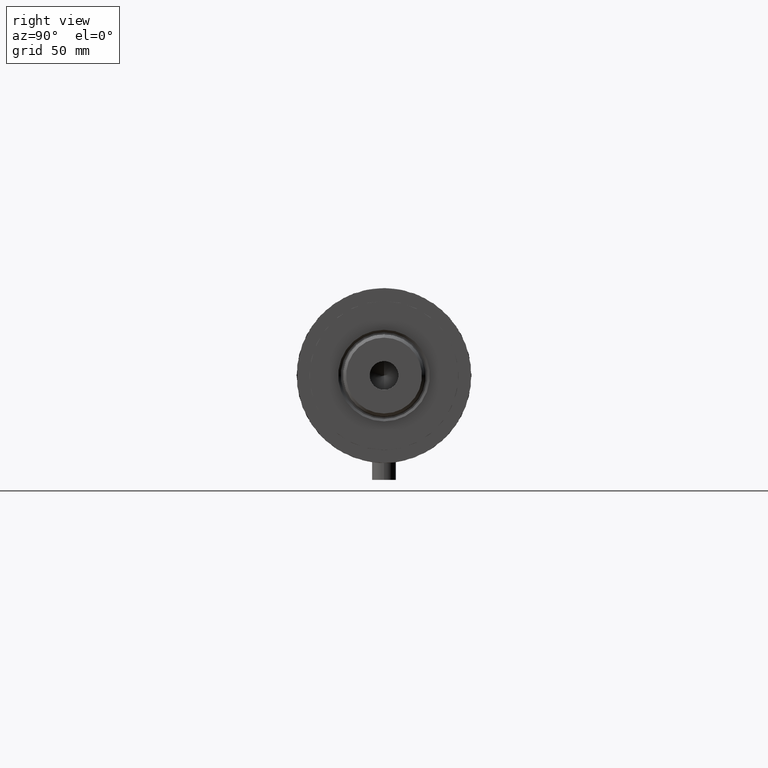
[diagram: clean part render]
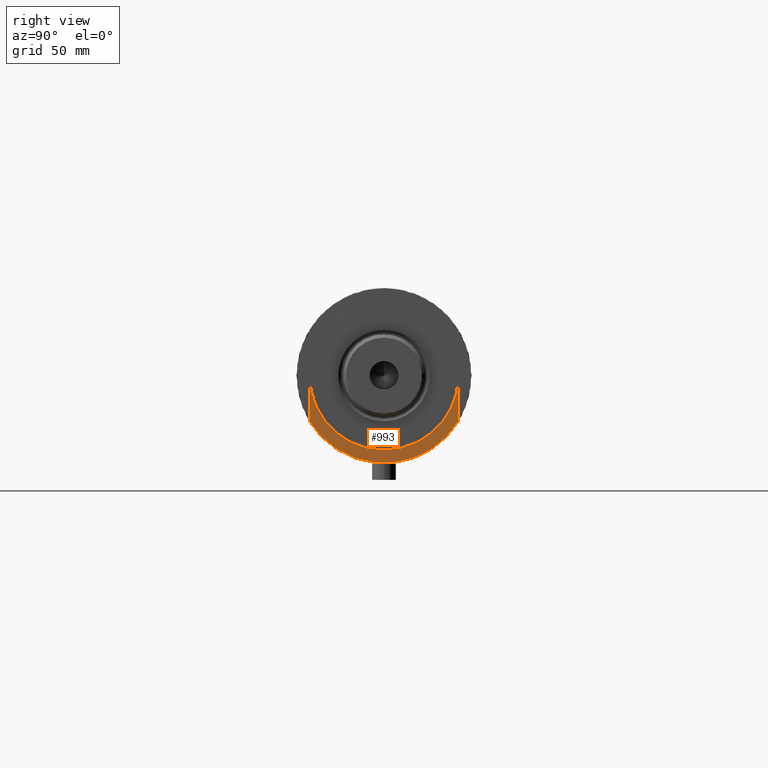
[diagram: same view with one face highlighted and labeled with its STEP entity id]
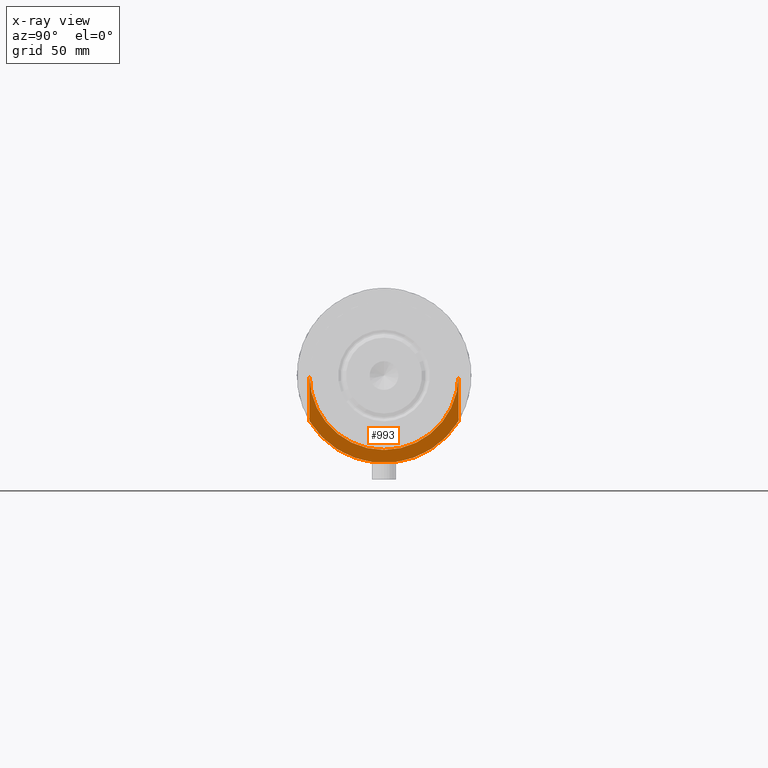
[diagram: x-ray of the same camera — body ghosted, the highlighted face saturated]
A machine part, right view. The second image highlights one B-rep face of the part: STEP entity #993.
The next image is the same camera in x-ray: the body ghosted, the highlighted face saturated — about 0% of this face is hidden behind the body in this view.
In plain terms, the highlighted planar face has unit normal (1, 0, -0).
Its self-contained STEP definition (entity closure, byte-faithful):
#283 = VECTOR ( 'NONE', #1143, 1000.000000000000000 ) ;
#290 = CARTESIAN_POINT ( 'NONE',  ( 23.01629857296780557, 37.50000000000000000, 27.89999999999999858 ) ) ;
#390 = CARTESIAN_POINT ( 'NONE',  ( 0.000000000000000000, 0.000000000000000000, 27.89999999999999858 ) ) ;
#408 = ORIENTED_EDGE ( 'NONE', *, *, #1883, .T. ) ;
#416 = ORIENTED_EDGE ( 'NONE', *, *, #2921, .F. ) ;
#499 = VERTEX_POINT ( 'NONE', #2518 ) ;
#691 = CARTESIAN_POINT ( 'NONE',  ( 0.000000000000000000, 0.000000000000000000, 27.89999999999999858 ) ) ;
#780 = ORIENTED_EDGE ( 'NONE', *, *, #4447, .T. ) ;
#783 = CARTESIAN_POINT ( 'NONE',  ( 0.000000000000000000, 0.000000000000000000, 27.89999999999999858 ) ) ;
#784 = DIRECTION ( 'NONE',  ( 0.000000000000000000, 0.000000000000000000, 1.000000000000000000 ) ) ;
#828 = DIRECTION ( 'NONE',  ( 1.000000000000000000, 0.000000000000000000, -0.000000000000000000 ) ) ;
#993 = ADVANCED_FACE ( 'NONE', ( #4005 ), #3562, .T. ) ;
#1070 = DIRECTION ( 'NONE',  ( 0.000000000000000000, 0.000000000000000000, 1.000000000000000000 ) ) ;
#1143 = DIRECTION ( 'NONE',  ( 1.000000000000000000, 0.000000000000000000, 0.000000000000000000 ) ) ;
#1308 = LINE ( 'NONE', #1583, #1406 ) ;
#1406 = VECTOR ( 'NONE', #2674, 1000.000000000000000 ) ;
#1583 = CARTESIAN_POINT ( 'NONE',  ( -23.01629857296780557, -37.50000000000000000, 27.89999999999999858 ) ) ;
#1745 = VERTEX_POINT ( 'NONE', #290 ) ;
#1817 = DIRECTION ( 'NONE',  ( 1.000000000000000000, 0.000000000000000000, 0.000000000000000000 ) ) ;
#1883 = EDGE_CURVE ( 'NONE', #3821, #1745, #2964, .T. ) ;
#1890 = CARTESIAN_POINT ( 'NONE',  ( 0.000000000000000000, 37.50000000000000000, 27.89999999999999858 ) ) ;
#1897 = DIRECTION ( 'NONE',  ( 1.000000000000000000, 0.000000000000000000, 0.000000000000000000 ) ) ;
#2060 = CARTESIAN_POINT ( 'NONE',  ( 23.01629857296780557, -37.50000000000000000, 27.89999999999999858 ) ) ;
#2102 = EDGE_CURVE ( 'NONE', #499, #3321, #2749, .T. ) ;
#2107 = DIRECTION ( 'NONE',  ( 1.000000000000000000, 0.000000000000000000, 0.000000000000000000 ) ) ;
#2139 = AXIS2_PLACEMENT_3D ( 'NONE', #3180, #1070, #1817 ) ;
#2202 = DIRECTION ( 'NONE',  ( -0.000000000000000000, -0.000000000000000000, -1.000000000000000000 ) ) ;
#2310 = EDGE_LOOP ( 'NONE', ( #3752, #780, #4058, #416, #408 ) ) ;
#2518 = CARTESIAN_POINT ( 'NONE',  ( 37.50000000000000000, 0.000000000000000000, 27.89999999999999858 ) ) ;
#2522 = AXIS2_PLACEMENT_3D ( 'NONE', #390, #784, #828 ) ;
#2674 = DIRECTION ( 'NONE',  ( -1.000000000000000000, -0.000000000000000000, -0.000000000000000000 ) ) ;
#2749 = CIRCLE ( 'NONE', #2969, 37.50000000000000000 ) ;
#2768 = EDGE_CURVE ( 'NONE', #3837, #1745, #4275, .T. ) ;
#2912 = AXIS2_PLACEMENT_3D ( 'NONE', #783, #2202, #1897 ) ;
#2921 = EDGE_CURVE ( 'NONE', #3821, #3321, #1308, .T. ) ;
#2964 = CIRCLE ( 'NONE', #2139, 44.00000000000000000 ) ;
#2967 = CARTESIAN_POINT ( 'NONE',  ( -23.01629857296780557, 37.50000000000000000, 27.89999999999999858 ) ) ;
#2969 = AXIS2_PLACEMENT_3D ( 'NONE', #691, #4503, #2107 ) ;
#3180 = CARTESIAN_POINT ( 'NONE',  ( 0.000000000000000000, 0.000000000000000000, 27.89999999999999858 ) ) ;
#3321 = VERTEX_POINT ( 'NONE', #4479 ) ;
#3560 = CIRCLE ( 'NONE', #2912, 37.50000000000000000 ) ;
#3562 = PLANE ( 'NONE',  #2522 ) ;
#3752 = ORIENTED_EDGE ( 'NONE', *, *, #2768, .F. ) ;
#3821 = VERTEX_POINT ( 'NONE', #2060 ) ;
#3837 = VERTEX_POINT ( 'NONE', #1890 ) ;
#4005 = FACE_OUTER_BOUND ( 'NONE', #2310, .T. ) ;
#4058 = ORIENTED_EDGE ( 'NONE', *, *, #2102, .T. ) ;
#4275 = LINE ( 'NONE', #2967, #283 ) ;
#4447 = EDGE_CURVE ( 'NONE', #3837, #499, #3560, .T. ) ;
#4479 = CARTESIAN_POINT ( 'NONE',  ( 0.000000000000000000, -37.50000000000000000, 27.89999999999999858 ) ) ;
#4503 = DIRECTION ( 'NONE',  ( -0.000000000000000000, -0.000000000000000000, -1.000000000000000000 ) ) ;